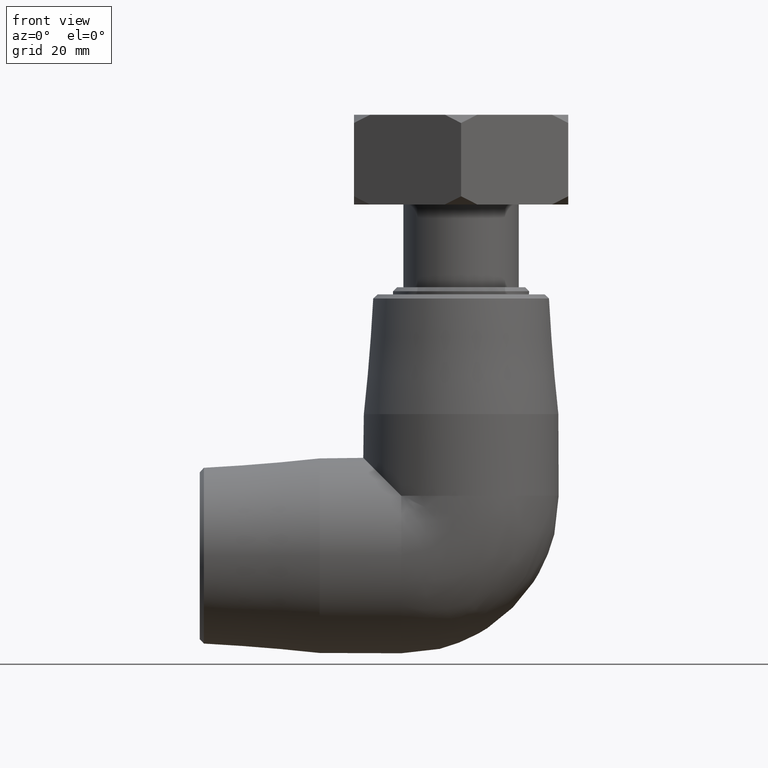
[diagram: clean part render]
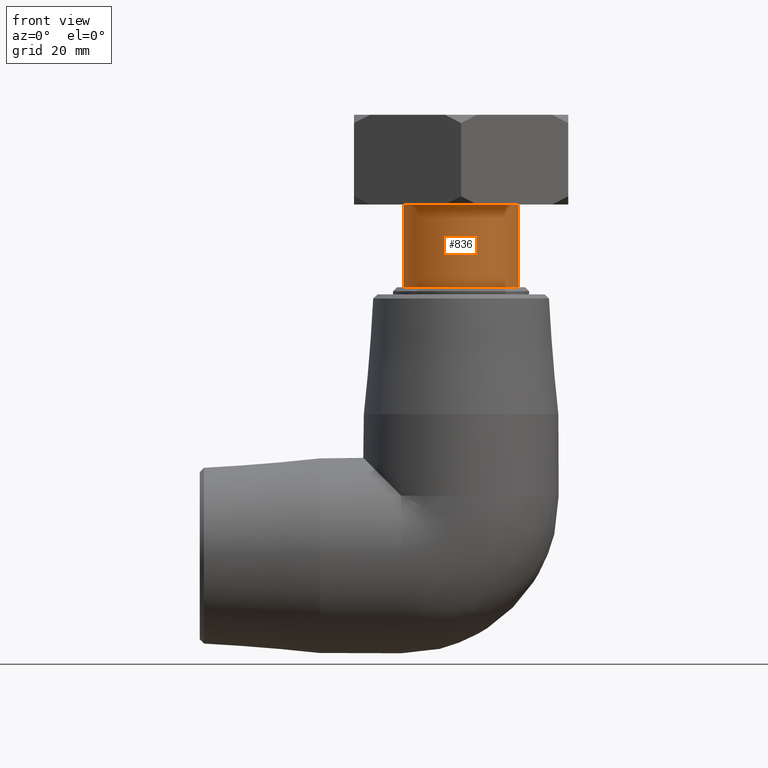
[diagram: same view with one face highlighted and labeled with its STEP entity id]
A machine part, front view. The second image highlights one B-rep face of the part: STEP entity #836.
In plain terms, the highlighted cylindrical surface (bore or boss wall) has radius 10.6019 mm, axis along (-0, 0, -1).
Its self-contained STEP definition (entity closure, byte-faithful):
#90=CYLINDRICAL_SURFACE('',#938,10.60185);
#146=FACE_BOUND('',#292,.T.);
#205=FACE_OUTER_BOUND('',#291,.T.);
#291=EDGE_LOOP('',(#721));
#292=EDGE_LOOP('',(#722));
#350=CIRCLE('',#901,10.60185);
#355=CIRCLE('',#910,10.60185);
#428=VERTEX_POINT('',#1409);
#433=VERTEX_POINT('',#1423);
#526=EDGE_CURVE('',#428,#428,#350,.T.);
#531=EDGE_CURVE('',#433,#433,#355,.T.);
#721=ORIENTED_EDGE('',*,*,#531,.F.);
#722=ORIENTED_EDGE('',*,*,#526,.T.);
#836=ADVANCED_FACE('',(#205,#146),#90,.T.);
#901=AXIS2_PLACEMENT_3D('',#1410,#1077,#1078);
#910=AXIS2_PLACEMENT_3D('',#1424,#1095,#1096);
#938=AXIS2_PLACEMENT_3D('',#1544,#1151,#1152);
#1077=DIRECTION('center_axis',(-2.77555756156289E-16,0.,-1.));
#1078=DIRECTION('ref_axis',(1.,0.,-2.77555756156289E-16));
#1095=DIRECTION('center_axis',(-2.77555756156289E-16,0.,-1.));
#1096=DIRECTION('ref_axis',(1.,0.,-2.77555756156289E-16));
#1151=DIRECTION('center_axis',(-2.77555756156289E-16,0.,-1.));
#1152=DIRECTION('ref_axis',(-1.,0.,1.98307743161102E-16));
#1409=CARTESIAN_POINT('',(-10.60185,0.,64.5));
#1410=CARTESIAN_POINT('Origin',(1.79023462720807E-14,0.,64.5));
#1423=CARTESIAN_POINT('',(-10.60185,0.,49.32));
#1424=CARTESIAN_POINT('Origin',(1.36890498936282E-14,0.,49.32));
#1544=CARTESIAN_POINT('Origin',(1.57956980828544E-14,0.,56.91));